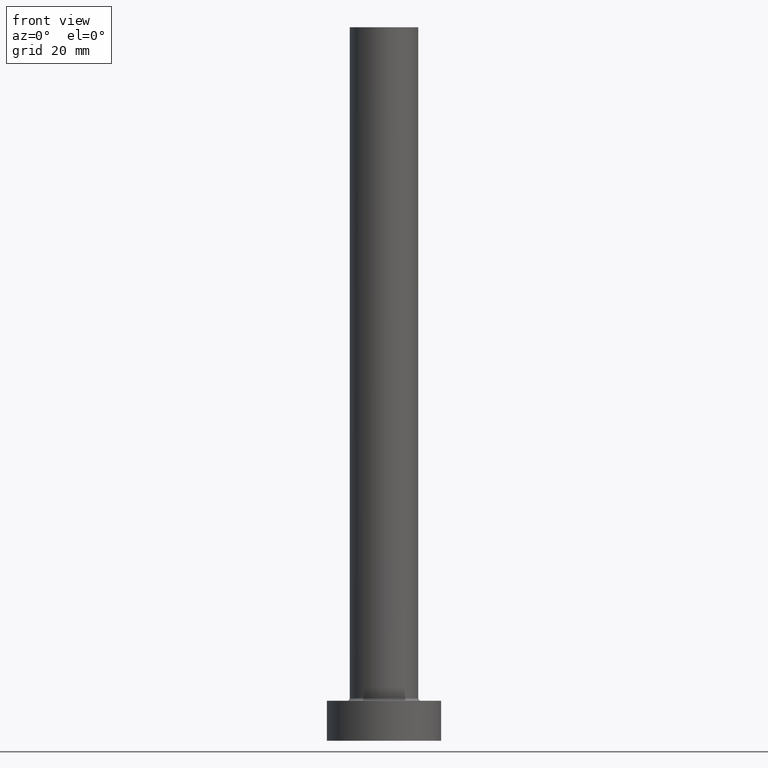
[diagram: clean part render]
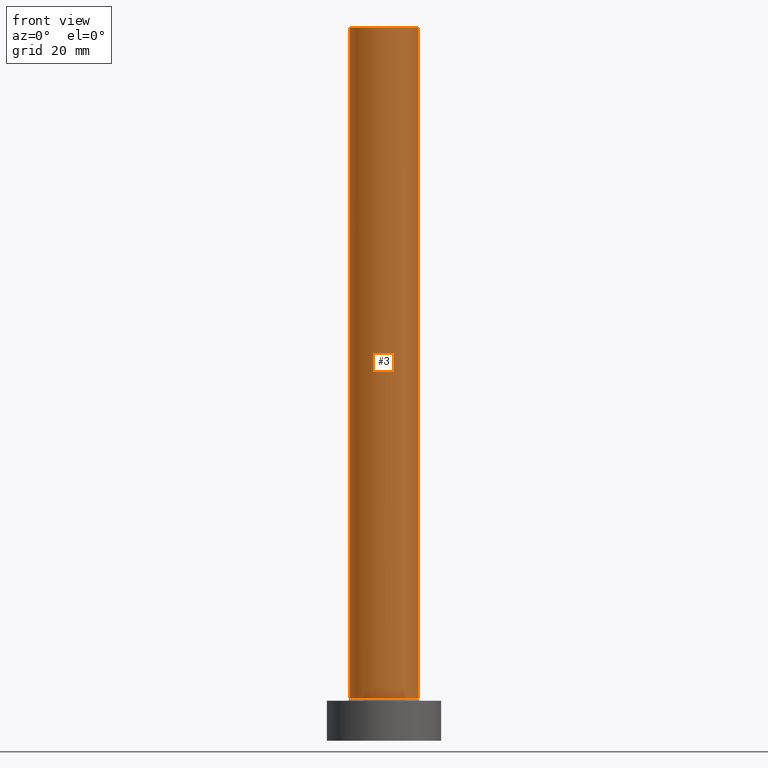
[diagram: same view with one face highlighted and labeled with its STEP entity id]
A machine part, front view. The second image highlights one B-rep face of the part: STEP entity #3.
In plain terms, the highlighted cylindrical surface (edge-blend (fillet) strip) has radius 6 mm, axis along (-0, -0, -1).
Its self-contained STEP definition (entity closure, byte-faithful):
#3 = ADVANCED_FACE ( 'NONE', ( #134 ), #59, .T. ) ;
#14 = LINE ( 'NONE', #406, #390 ) ;
#17 = DIRECTION ( 'NONE',  ( -0.000000000000000000, -0.000000000000000000, -1.000000000000000000 ) ) ;
#31 = VERTEX_POINT ( 'NONE', #172 ) ;
#32 = CARTESIAN_POINT ( 'NONE',  ( 0.000000000000000000, 0.000000000000000000, 125.0000000000000000 ) ) ;
#55 = ORIENTED_EDGE ( 'NONE', *, *, #239, .F. ) ;
#59 = CYLINDRICAL_SURFACE ( 'NONE', #77, 6.000000000000000888 ) ;
#60 = DIRECTION ( 'NONE',  ( -0.000000000000000000, -0.000000000000000000, -1.000000000000000000 ) ) ;
#64 = DIRECTION ( 'NONE',  ( 1.000000000000000000, 0.000000000000000000, 0.000000000000000000 ) ) ;
#68 = EDGE_CURVE ( 'NONE', #218, #31, #14, .T. ) ;
#73 = CARTESIAN_POINT ( 'NONE',  ( 6.000000000000000888, 7.347880794884120722E-16, 7.500000000000007105 ) ) ;
#74 = CARTESIAN_POINT ( 'NONE',  ( 6.000000000000000888, 7.347880794884120722E-16, 125.0000000000000000 ) ) ;
#77 = AXIS2_PLACEMENT_3D ( 'NONE', #205, #60, #347 ) ;
#79 = CIRCLE ( 'NONE', #117, 6.000000000000000888 ) ;
#83 = CIRCLE ( 'NONE', #223, 6.000000000000000888 ) ;
#90 = VERTEX_POINT ( 'NONE', #73 ) ;
#104 = DIRECTION ( 'NONE',  ( 0.000000000000000000, 0.000000000000000000, 1.000000000000000000 ) ) ;
#111 = LINE ( 'NONE', #74, #155 ) ;
#117 = AXIS2_PLACEMENT_3D ( 'NONE', #141, #246, #386 ) ;
#134 = FACE_OUTER_BOUND ( 'NONE', #231, .T. ) ;
#141 = CARTESIAN_POINT ( 'NONE',  ( 0.000000000000000000, 0.000000000000000000, 7.500000000000007105 ) ) ;
#155 = VECTOR ( 'NONE', #258, 1000.000000000000000 ) ;
#159 = ORIENTED_EDGE ( 'NONE', *, *, #402, .T. ) ;
#172 = CARTESIAN_POINT ( 'NONE',  ( -6.000000000000000888, 0.000000000000000000, 7.500000000000007105 ) ) ;
#191 = ORIENTED_EDGE ( 'NONE', *, *, #428, .F. ) ;
#205 = CARTESIAN_POINT ( 'NONE',  ( 0.000000000000000000, 0.000000000000000000, 125.0000000000000000 ) ) ;
#217 = CARTESIAN_POINT ( 'NONE',  ( -6.000000000000000888, 0.000000000000000000, 125.0000000000000000 ) ) ;
#218 = VERTEX_POINT ( 'NONE', #217 ) ;
#223 = AXIS2_PLACEMENT_3D ( 'NONE', #32, #104, #64 ) ;
#231 = EDGE_LOOP ( 'NONE', ( #191, #55, #407, #159 ) ) ;
#239 = EDGE_CURVE ( 'NONE', #218, #349, #83, .T. ) ;
#246 = DIRECTION ( 'NONE',  ( 0.000000000000000000, 0.000000000000000000, 1.000000000000000000 ) ) ;
#258 = DIRECTION ( 'NONE',  ( -0.000000000000000000, -0.000000000000000000, -1.000000000000000000 ) ) ;
#347 = DIRECTION ( 'NONE',  ( -1.000000000000000000, 0.000000000000000000, 0.000000000000000000 ) ) ;
#349 = VERTEX_POINT ( 'NONE', #446 ) ;
#386 = DIRECTION ( 'NONE',  ( 1.000000000000000000, 0.000000000000000000, 0.000000000000000000 ) ) ;
#390 = VECTOR ( 'NONE', #17, 1000.000000000000000 ) ;
#402 = EDGE_CURVE ( 'NONE', #31, #90, #79, .T. ) ;
#406 = CARTESIAN_POINT ( 'NONE',  ( -6.000000000000000888, 0.000000000000000000, 125.0000000000000000 ) ) ;
#407 = ORIENTED_EDGE ( 'NONE', *, *, #68, .T. ) ;
#428 = EDGE_CURVE ( 'NONE', #349, #90, #111, .T. ) ;
#446 = CARTESIAN_POINT ( 'NONE',  ( 6.000000000000000888, 7.347880794884120722E-16, 125.0000000000000000 ) ) ;